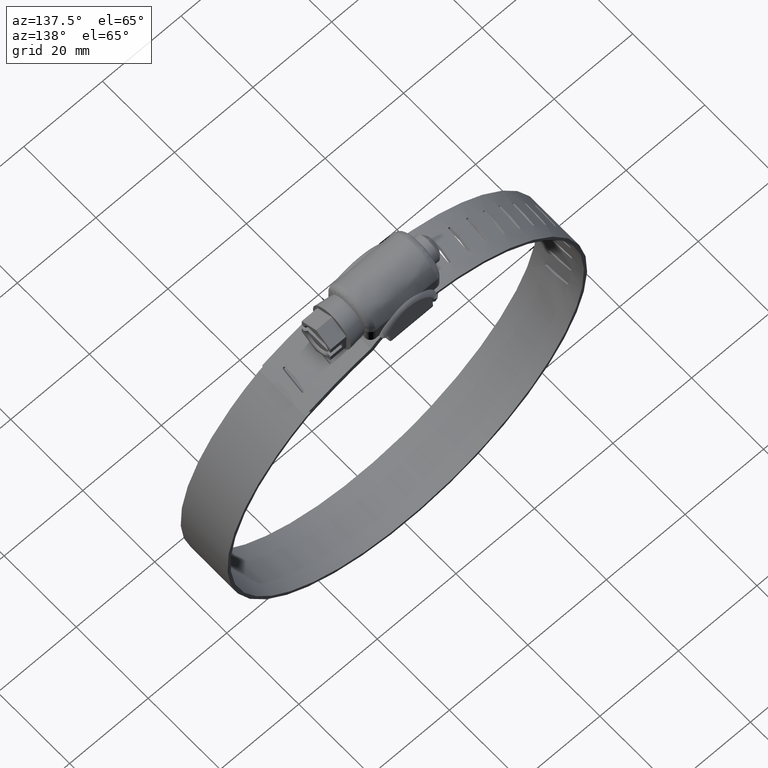
[diagram: clean part render]
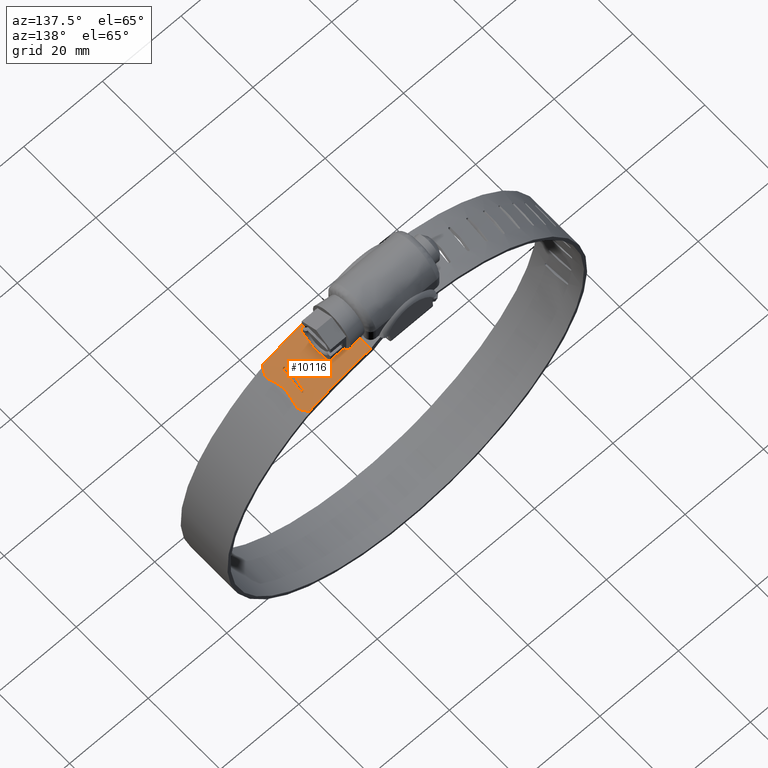
[diagram: same view with one face highlighted and labeled with its STEP entity id]
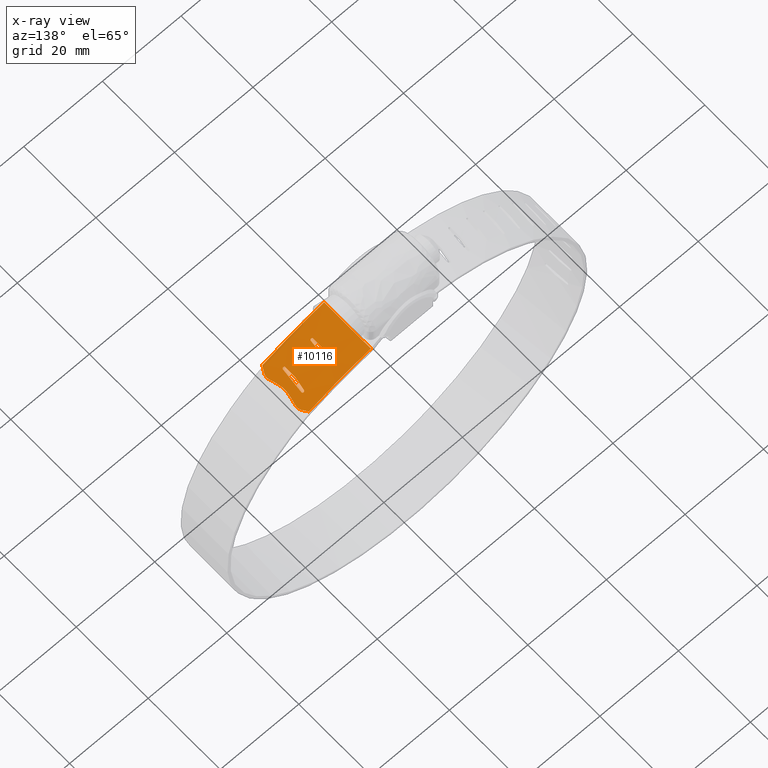
[diagram: x-ray of the same camera — body ghosted, the highlighted face saturated]
A machine part, auxiliary view. The second image highlights one B-rep face of the part: STEP entity #10116.
The next image is the same camera in x-ray: the body ghosted, the highlighted face saturated — about 0% of this face is hidden behind the body in this view.
In plain terms, the highlighted face is a freeform B-spline surface patch.
Its self-contained STEP definition (entity closure, byte-faithful):
#8594=CARTESIAN_POINT('',(9.230222700109101,2.817188247405955,10.887856189108360));
#8595=VERTEX_POINT('',#8594);
#8596=CARTESIAN_POINT('',(9.231305816878090,2.827519999999880,10.887652236006060));
#8597=VERTEX_POINT('',#8596);
#8598=CARTESIAN_POINT('',(9.230222700109101,2.817188247405955,10.887856189108360));
#8599=CARTESIAN_POINT('',(9.231305816878090,2.827519999999880,10.887652236006060));
#8600=QUASI_UNIFORM_CURVE('',1,(#8598,#8599),.UNSPECIFIED.,.F.,.U.);
#8601=EDGE_CURVE('',#8595,#8597,#8600,.T.);
#8669=CARTESIAN_POINT('',(9.230222700109051,2.853041539362735,10.887856189108319));
#8670=VERTEX_POINT('',#8669);
#8748=CARTESIAN_POINT('',(9.230222700109051,2.853041539362735,10.887856189108319));
#8749=CARTESIAN_POINT('',(9.231305816878090,2.827519999999880,10.887652236006060));
#8750=QUASI_UNIFORM_CURVE('',1,(#8748,#8749),.UNSPECIFIED.,.F.,.U.);
#8751=EDGE_CURVE('',#8670,#8597,#8750,.T.);
#8941=CARTESIAN_POINT('',(15.353237471989550,-0.313004000000117,9.430597077441080));
#8942=VERTEX_POINT('',#8941);
#8943=CARTESIAN_POINT('',(15.353237471989299,-2.872480000000000,9.430597077441089));
#8944=VERTEX_POINT('',#8943);
#8945=CARTESIAN_POINT('',(15.353237471989550,-0.313004000000117,9.430597077441080));
#8946=CARTESIAN_POINT('',(15.353237471989299,-2.872480000000000,9.430597077441089));
#8947=QUASI_UNIFORM_CURVE('',1,(#8945,#8946),.UNSPECIFIED.,.F.,.U.);
#8948=EDGE_CURVE('',#8942,#8944,#8947,.T.);
#8990=CARTESIAN_POINT('',(15.938009365771300,-2.872480000000000,9.258772975433201));
#8991=VERTEX_POINT('',#8990);
#9020=CARTESIAN_POINT('',(15.645834251182359,-3.172479978969995,9.345353863965562));
#9021=VERTEX_POINT('',#9020);
#9022=CARTESIAN_POINT('',(15.645834251182359,-3.172479978969995,9.345353863965562));
#9023=CARTESIAN_POINT('',(15.579389477736180,-3.172952565550569,9.364878365282042));
#9024=CARTESIAN_POINT('',(15.466146807141291,-3.130424667992435,9.398048778284437));
#9025=CARTESIAN_POINT('',(15.371965920817800,-3.000602486252366,9.425405888703486));
#9026=CARTESIAN_POINT('',(15.353816214212630,-2.911964166541003,9.430523102872375));
#9027=CARTESIAN_POINT('',(15.353237471989299,-2.872480000000000,9.430597077441089));
#9028=B_SPLINE_CURVE_WITH_KNOTS('',3,(#9022,#9023,#9024,#9025,#9026,#9027),.UNSPECIFIED.,.F.,.U.,(4,1,1,4),(0.000001660317372,0.207498044210473,0.355677238073957,0.474235979224484),.UNSPECIFIED.);
#9029=EDGE_CURVE('',#9021,#8944,#9028,.T.);
#9031=CARTESIAN_POINT('',(15.938009365771300,-2.872480000000000,9.258772975433201));
#9032=CARTESIAN_POINT('',(15.937483316712051,-2.911963928937157,9.259023622205366));
#9033=CARTESIAN_POINT('',(15.919449377355321,-3.000584649581780,9.264538241598652));
#9034=CARTESIAN_POINT('',(15.825455206732199,-3.130441046000716,9.292472876904252));
#9035=CARTESIAN_POINT('',(15.712270966851060,-3.172909192438410,9.325833560827217));
#9036=CARTESIAN_POINT('',(15.645834251182359,-3.172479978969995,9.345353863965562));
#9037=B_SPLINE_CURVE_WITH_KNOTS('',3,(#9031,#9032,#9033,#9034,#9035,#9036),.UNSPECIFIED.,.F.,.U.,(4,1,1,4),(0.000000835277714,0.118552907723867,0.266723769253057,0.474208479421847),.UNSPECIFIED.);
#9038=EDGE_CURVE('',#8991,#9021,#9037,.T.);
#9048=CARTESIAN_POINT('',(16.520244992011449,2.827519999999880,9.081861907719310));
#9049=VERTEX_POINT('',#9048);
#9050=CARTESIAN_POINT('',(15.938009365771300,-2.872480000000000,9.258772975433201));
#9051=CARTESIAN_POINT('',(16.520244992011449,2.827519999999880,9.081861907719310));
#9052=QUASI_UNIFORM_CURVE('',1,(#9050,#9051),.UNSPECIFIED.,.F.,.U.);
#9053=EDGE_CURVE('',#8991,#9049,#9052,.T.);
#9089=CARTESIAN_POINT('',(15.938009365771300,2.827519999999880,9.258772975433201));
#9090=VERTEX_POINT('',#9089);
#9119=CARTESIAN_POINT('',(16.229366638614891,3.127519988816475,9.170975140533852));
#9120=VERTEX_POINT('',#9119);
#9121=CARTESIAN_POINT('',(16.229366638614891,3.127519988816475,9.170975140533852));
#9122=CARTESIAN_POINT('',(16.267111851704410,3.127555073098105,9.159506411246639));
#9123=CARTESIAN_POINT('',(16.352113555354300,3.110032961584742,9.133636138557334));
#9124=CARTESIAN_POINT('',(16.477570139638949,3.014013983891643,9.095282617347076));
#9125=CARTESIAN_POINT('',(16.519720410558008,2.896682734467435,9.082189682470908));
#9126=CARTESIAN_POINT('',(16.520244992011449,2.827519999999880,9.081861907719310));
#9127=B_SPLINE_CURVE_WITH_KNOTS('',3,(#9121,#9122,#9123,#9124,#9125,#9126),.UNSPECIFIED.,.F.,.U.,(4,1,1,4),(0.000001307988805,0.118462417096805,0.266519700891922,0.473845836866454),.UNSPECIFIED.);
#9128=EDGE_CURVE('',#9120,#9049,#9127,.T.);
#9130=CARTESIAN_POINT('',(15.938009365771300,2.827519999999880,9.258772975433201));
#9131=CARTESIAN_POINT('',(15.938536156576941,2.866978920605721,9.258708976861646));
#9132=CARTESIAN_POINT('',(15.956554220190300,2.955569541558125,9.253449911757407));
#9133=CARTESIAN_POINT('',(16.050269885053758,3.085446468722952,9.225290827128241));
#9134=CARTESIAN_POINT('',(16.163182957455209,3.127900878519924,9.191085820084961));
#9135=CARTESIAN_POINT('',(16.229366638614891,3.127519988816475,9.170975140533852));
#9136=B_SPLINE_CURVE_WITH_KNOTS('',3,(#9130,#9131,#9132,#9133,#9134,#9135),.UNSPECIFIED.,.F.,.U.,(4,1,1,4),(0.000001190845610,0.118481353129834,0.266562411151377,0.473921747517501),.UNSPECIFIED.);
#9137=EDGE_CURVE('',#9090,#9120,#9136,.T.);
#9147=CARTESIAN_POINT('',(15.391303475518200,0.030281000000002,9.419589794821270));
#9148=VERTEX_POINT('',#9147);
#9149=CARTESIAN_POINT('',(15.938009365771300,2.827519999999880,9.258772975433201));
#9150=CARTESIAN_POINT('',(15.391303475518200,0.030281000000002,9.419589794821270));
#9151=QUASI_UNIFORM_CURVE('',1,(#9149,#9150),.UNSPECIFIED.,.F.,.U.);
#9152=EDGE_CURVE('',#9090,#9148,#9151,.T.);
#9175=CARTESIAN_POINT('',(15.391303475518200,0.030281000000002,9.419589794821270));
#9176=CARTESIAN_POINT('',(15.353237471989550,-0.313004000000117,9.430597077441080));
#9177=QUASI_UNIFORM_CURVE('',1,(#9175,#9176),.UNSPECIFIED.,.F.,.U.);
#9178=EDGE_CURVE('',#9148,#8942,#9177,.T.);
#9204=CARTESIAN_POINT('',(25.515306484840799,-2.061301204482780,5.566556950268270));
#9205=VERTEX_POINT('',#9204);
#9206=CARTESIAN_POINT('',(25.515306484840750,2.061301204482445,5.566556950268270));
#9207=VERTEX_POINT('',#9206);
#9208=CARTESIAN_POINT('',(25.515306484840799,-2.061301204482780,5.566556950268270));
#9209=CARTESIAN_POINT('',(25.382379051593649,-1.516027701265343,5.629716827649327));
#9210=CARTESIAN_POINT('',(25.185661247749650,-0.134851896540806,5.723186415272900));
#9211=CARTESIAN_POINT('',(25.320700994751519,1.264400387586254,5.659022881426841));
#9212=CARTESIAN_POINT('',(25.515306484840750,2.061301204482445,5.566556950268270));
#9213=B_SPLINE_CURVE_WITH_KNOTS('',3,(#9208,#9209,#9210,#9211,#9212),.UNSPECIFIED.,.F.,.U.,(4,1,4),(0.000000019080829,1.694378406885622,4.170743740979951),.UNSPECIFIED.);
#9214=EDGE_CURVE('',#9205,#9207,#9213,.T.);
#9255=CARTESIAN_POINT('',(25.908712002142451,3.681800700682950,5.377089482418460));
#9256=VERTEX_POINT('',#9255);
#9257=CARTESIAN_POINT('',(25.710922002135799,5.226117512658560,5.472746253276511));
#9258=VERTEX_POINT('',#9257);
#9259=CARTESIAN_POINT('',(25.908712002142451,3.681800700682950,5.377089482418460));
#9260=CARTESIAN_POINT('',(25.983526658967989,3.988161539756614,5.340879667935229));
#9261=CARTESIAN_POINT('',(25.993825593928442,4.537776175503347,5.335879461026392));
#9262=CARTESIAN_POINT('',(25.812402234099640,5.040588270994931,5.423648936347411));
#9263=CARTESIAN_POINT('',(25.710922002135799,5.226117512658560,5.472746253276511));
#9264=B_SPLINE_CURVE_WITH_KNOTS('',3,(#9259,#9260,#9261,#9262,#9263),.UNSPECIFIED.,.F.,.U.,(4,1,4),(0.000000100567203,0.951910027821617,1.603225380619430),.UNSPECIFIED.);
#9265=EDGE_CURVE('',#9256,#9258,#9264,.T.);
#9306=CARTESIAN_POINT('',(25.710922002135948,-5.226117512658971,5.472746253276450));
#9307=VERTEX_POINT('',#9306);
#9308=CARTESIAN_POINT('',(25.908712002142451,-3.681800700683280,5.377089482418450));
#9309=VERTEX_POINT('',#9308);
#9310=CARTESIAN_POINT('',(25.710922002135948,-5.226117512658971,5.472746253276450));
#9311=CARTESIAN_POINT('',(25.859687491844301,-4.955105779940631,5.400684016104755));
#9312=CARTESIAN_POINT('',(26.007543372530840,-4.430487277231399,5.329095384550370));
#9313=CARTESIAN_POINT('',(25.959595771626262,-3.891402711803436,5.352402236202392));
#9314=CARTESIAN_POINT('',(25.908712002142451,-3.681800700683280,5.377089482418450));
#9315=B_SPLINE_CURVE_WITH_KNOTS('',3,(#9310,#9311,#9312,#9313,#9314),.UNSPECIFIED.,.F.,.U.,(4,1,4),(0.000000100678212,0.951924416187501,1.603249618908127),.UNSPECIFIED.);
#9316=EDGE_CURVE('',#9307,#9309,#9315,.T.);
#9356=CARTESIAN_POINT('',(25.012535699162001,-6.500000000000000,5.804070216835290));
#9357=VERTEX_POINT('',#9356);
#9358=CARTESIAN_POINT('',(25.012535699162001,-6.500000000000000,5.804070216835290));
#9359=CARTESIAN_POINT('',(25.710922002135948,-5.226117512658971,5.472746253276450));
#9360=QUASI_UNIFORM_CURVE('',1,(#9358,#9359),.UNSPECIFIED.,.F.,.U.);
#9361=EDGE_CURVE('',#9357,#9307,#9360,.T.);
#9376=CARTESIAN_POINT('',(25.012535699162200,6.499999999999840,5.804070216835160));
#9377=VERTEX_POINT('',#9376);
#9378=CARTESIAN_POINT('',(25.710922002135799,5.226117512658560,5.472746253276511));
#9379=CARTESIAN_POINT('',(25.012535699162200,6.499999999999840,5.804070216835160));
#9380=QUASI_UNIFORM_CURVE('',1,(#9378,#9379),.UNSPECIFIED.,.F.,.U.);
#9381=EDGE_CURVE('',#9258,#9377,#9380,.T.);
#9410=CARTESIAN_POINT('',(25.908712002142451,-3.681800700683280,5.377089482418450));
#9411=CARTESIAN_POINT('',(25.515306484840799,-2.061301204482780,5.566556950268270));
#9412=QUASI_UNIFORM_CURVE('',1,(#9410,#9411),.UNSPECIFIED.,.F.,.U.);
#9413=EDGE_CURVE('',#9309,#9205,#9412,.T.);
#9424=CARTESIAN_POINT('',(25.515306484840750,2.061301204482445,5.566556950268270));
#9425=CARTESIAN_POINT('',(25.908712002142451,3.681800700682950,5.377089482418460));
#9426=QUASI_UNIFORM_CURVE('',1,(#9424,#9425),.UNSPECIFIED.,.F.,.U.);
#9427=EDGE_CURVE('',#9207,#9256,#9426,.T.);
#9444=CARTESIAN_POINT('',(22.437880660319198,-0.313004000000117,6.941150572174880));
#9445=VERTEX_POINT('',#9444);
#9446=CARTESIAN_POINT('',(22.437880660319049,-2.872480000000000,6.941150572174931));
#9447=VERTEX_POINT('',#9446);
#9448=CARTESIAN_POINT('',(22.437880660319198,-0.313004000000117,6.941150572174880));
#9449=CARTESIAN_POINT('',(22.437880660319049,-2.872480000000000,6.941150572174931));
#9450=QUASI_UNIFORM_CURVE('',1,(#9448,#9449),.UNSPECIFIED.,.F.,.U.);
#9451=EDGE_CURVE('',#9445,#9447,#9450,.T.);
#9493=CARTESIAN_POINT('',(22.999442515421400,-2.872480000000000,6.704232922595580));
#9494=VERTEX_POINT('',#9493);
#9523=CARTESIAN_POINT('',(22.718946779470048,-3.172479978969994,6.823332418635170));
#9524=VERTEX_POINT('',#9523);
#9525=CARTESIAN_POINT('',(22.718946779470048,-3.172479978969994,6.823332418635170));
#9526=CARTESIAN_POINT('',(22.655170358582829,-3.172884029421454,6.850239923494841));
#9527=CARTESIAN_POINT('',(22.546344249113400,-3.130475848574109,6.896044853291687));
#9528=CARTESIAN_POINT('',(22.455915328281669,-3.000590945446306,6.933866584004436));
#9529=CARTESIAN_POINT('',(22.438444725033371,-2.911964115052918,6.941012647298074));
#9530=CARTESIAN_POINT('',(22.437880660319049,-2.872480000000000,6.941150572174931));
#9531=B_SPLINE_CURVE_WITH_KNOTS('',3,(#9525,#9526,#9527,#9528,#9529,#9530),.UNSPECIFIED.,.F.,.U.,(4,1,1,4),(0.000001660317415,0.207498044210709,0.355677238074322,0.474235979224972),.UNSPECIFIED.);
#9532=EDGE_CURVE('',#9524,#9447,#9531,.T.);
#9534=CARTESIAN_POINT('',(22.999442515421400,-2.872480000000000,6.704232922595580));
#9535=CARTESIAN_POINT('',(22.998947812733270,-2.911962310362362,6.704541677142443));
#9536=CARTESIAN_POINT('',(22.981656565170979,-3.000593611944376,6.712061322101431));
#9537=CARTESIAN_POINT('',(22.891421633314721,-3.130416237424343,6.750459809029791));
#9538=CARTESIAN_POINT('',(22.782753256048832,-3.172944319390328,6.796414055193860));
#9539=CARTESIAN_POINT('',(22.718946779470048,-3.172479978969994,6.823332418635170));
#9540=B_SPLINE_CURVE_WITH_KNOTS('',3,(#9534,#9535,#9536,#9537,#9538,#9539),.UNSPECIFIED.,.F.,.U.,(4,1,1,4),(0.000000835277821,0.118552907723793,0.266723769252756,0.474208479421236),.UNSPECIFIED.);
#9541=EDGE_CURVE('',#9494,#9524,#9540,.T.);
#9551=CARTESIAN_POINT('',(23.557908545609600,2.827519999999880,6.462548120696910));
#9552=VERTEX_POINT('',#9551);
#9553=CARTESIAN_POINT('',(22.999442515421400,-2.872480000000000,6.704232922595580));
#9554=CARTESIAN_POINT('',(23.557908545609600,2.827519999999880,6.462548120696910));
#9555=QUASI_UNIFORM_CURVE('',1,(#9553,#9554),.UNSPECIFIED.,.F.,.U.);
#9556=EDGE_CURVE('',#9494,#9552,#9555,.T.);
#9592=CARTESIAN_POINT('',(22.999442515421400,2.827519999999880,6.704232922595580));
#9593=VERTEX_POINT('',#9592);
#9622=CARTESIAN_POINT('',(23.278987904592778,3.127519988816474,6.584016885209937));
#9623=VERTEX_POINT('',#9622);
#9624=CARTESIAN_POINT('',(23.278987904592778,3.127519988816474,6.584016885209937));
#9625=CARTESIAN_POINT('',(23.342460100061938,3.127883408781170,6.556549213915860));
#9626=CARTESIAN_POINT('',(23.450669882369240,3.085413877645749,6.509611928000692));
#9627=CARTESIAN_POINT('',(23.540327870693389,2.955549086421459,6.470481397543268));
#9628=CARTESIAN_POINT('',(23.557465454184189,2.866972610548197,6.462840013824160));
#9629=CARTESIAN_POINT('',(23.557908545609600,2.827519999999880,6.462548120696910));
#9630=B_SPLINE_CURVE_WITH_KNOTS('',3,(#9624,#9625,#9626,#9627,#9628,#9629),.UNSPECIFIED.,.F.,.U.,(4,1,1,4),(0.000001307988581,0.207327372299138,0.355384681536477,0.473845836866784),.UNSPECIFIED.);
#9631=EDGE_CURVE('',#9623,#9552,#9630,.T.);
#9633=CARTESIAN_POINT('',(22.999442515421400,2.827519999999880,6.704232922595580));
#9634=CARTESIAN_POINT('',(22.999958675095769,2.866978920605694,6.704109701003903));
#9635=CARTESIAN_POINT('',(23.017265572924529,2.955569541558038,6.696844739222292));
#9636=CARTESIAN_POINT('',(23.107191121092040,3.085446468722807,6.658257750810274));
#9637=CARTESIAN_POINT('',(23.215506255243689,3.127900878519840,6.611490495816679));
#9638=CARTESIAN_POINT('',(23.278987904592778,3.127519988816474,6.584016885209937));
#9639=B_SPLINE_CURVE_WITH_KNOTS('',3,(#9633,#9634,#9635,#9636,#9637,#9638),.UNSPECIFIED.,.F.,.U.,(4,1,1,4),(0.000001190845591,0.118481353129733,0.266562411151180,0.473921747517180),.UNSPECIFIED.);
#9640=EDGE_CURVE('',#9593,#9623,#9639,.T.);
#9650=CARTESIAN_POINT('',(22.474455910316149,0.030281000000002,6.925904852022050));
#9651=VERTEX_POINT('',#9650);
#9652=CARTESIAN_POINT('',(22.999442515421400,2.827519999999880,6.704232922595580));
#9653=CARTESIAN_POINT('',(22.474455910316149,0.030281000000002,6.925904852022050));
#9654=QUASI_UNIFORM_CURVE('',1,(#9652,#9653),.UNSPECIFIED.,.F.,.U.);
#9655=EDGE_CURVE('',#9593,#9651,#9654,.T.);
#9678=CARTESIAN_POINT('',(22.474455910316149,0.030281000000002,6.925904852022050));
#9679=CARTESIAN_POINT('',(22.437880660319198,-0.313004000000117,6.941150572174880));
#9680=QUASI_UNIFORM_CURVE('',1,(#9678,#9679),.UNSPECIFIED.,.F.,.U.);
#9681=EDGE_CURVE('',#9651,#9445,#9680,.T.);
#9818=CARTESIAN_POINT('',(9.230222700109101,-6.500000000000000,10.887856189108360));
#9819=VERTEX_POINT('',#9818);
#9820=CARTESIAN_POINT('',(25.012535699162001,-6.500000000000000,5.804070216835290));
#9821=CARTESIAN_POINT('',(22.894555131026909,-6.499999999999998,6.793803051482898));
#9822=CARTESIAN_POINT('',(17.749780653597931,-6.500000000000004,8.873664433406683));
#9823=CARTESIAN_POINT('',(12.378620803118761,-6.500000000000002,10.295204885329680));
#9824=CARTESIAN_POINT('',(9.230222700109101,-6.500000000000000,10.887856189108360));
#9825=B_SPLINE_CURVE_WITH_KNOTS('',3,(#9820,#9821,#9822,#9823,#9824),.UNSPECIFIED.,.F.,.U.,(4,1,4),(1.771724E-009,7.013472146817978,16.624524301948409),.UNSPECIFIED.);
#9826=EDGE_CURVE('',#9357,#9819,#9825,.T.);
#9862=CARTESIAN_POINT('',(9.230222700109101,6.499999999999840,10.887856189108360));
#9863=VERTEX_POINT('',#9862);
#9873=CARTESIAN_POINT('',(25.012535699162200,6.499999999999840,5.804070216835160));
#9874=CARTESIAN_POINT('',(22.894555494265799,6.499999999999838,6.793803615890494));
#9875=CARTESIAN_POINT('',(17.749780243148010,6.499999999999832,8.873663729145678));
#9876=CARTESIAN_POINT('',(12.378620989691820,6.499999999999863,10.295205273932369));
#9877=CARTESIAN_POINT('',(9.230222700109101,6.499999999999840,10.887856189108360));
#9878=B_SPLINE_CURVE_WITH_KNOTS('',3,(#9873,#9874,#9875,#9876,#9877),.UNSPECIFIED.,.F.,.U.,(4,1,4),(1.770495E-009,7.013472146817609,16.624524301948640),.UNSPECIFIED.);
#9879=EDGE_CURVE('',#9377,#9863,#9878,.T.);
#10046=CARTESIAN_POINT('',(9.230222700109101,6.499999999999840,10.887856189108360));
#10047=CARTESIAN_POINT('',(9.230222700109051,2.853041539362735,10.887856189108319));
#10048=QUASI_UNIFORM_CURVE('',1,(#10046,#10047),.UNSPECIFIED.,.F.,.U.);
#10049=EDGE_CURVE('',#9863,#8670,#10048,.T.);
#10054=CARTESIAN_POINT('',(9.230222700109101,2.817188247405955,10.887856189108360));
#10055=CARTESIAN_POINT('',(9.230222700109101,-6.500000000000000,10.887856189108360));
#10056=QUASI_UNIFORM_CURVE('',1,(#10054,#10055),.UNSPECIFIED.,.F.,.U.);
#10057=EDGE_CURVE('',#8595,#9819,#10056,.T.);
#10067=CARTESIAN_POINT('',(26.757831682101646,-6.824999999999995,4.957160792961615));
#10068=CARTESIAN_POINT('',(26.757831682101646,6.833124999999837,4.957160792961615));
#10069=CARTESIAN_POINT('',(18.010447978239821,-6.824999999999996,9.361281034664398));
#10070=CARTESIAN_POINT('',(18.010447978239821,6.833124999999837,9.361281034664398));
#10071=CARTESIAN_POINT('',(8.362787442035433,-6.824999999999997,11.045217774606824));
#10072=CARTESIAN_POINT('',(8.362787442035433,6.833124999999837,11.045217774606824));
#10080=(BOUNDED_SURFACE()B_SPLINE_SURFACE(1,2,((#10067,#10069,#10071),(#10068,#10070,#10072)),.UNSPECIFIED.,.F.,.F.,.U.)B_SPLINE_SURFACE_WITH_KNOTS((2,2),(3,3),(0.0,13.658124999999830),(0.0,19.481101757422930),.UNSPECIFIED.)GEOMETRIC_REPRESENTATION_ITEM()RATIONAL_B_SPLINE_SURFACE(((0.997742833249378,0.985555038825192,0.994804270716020),(0.997742833249378,0.985555038825192,0.994804270716020)))REPRESENTATION_ITEM('')SURFACE());
#10081=ORIENTED_EDGE('',*,*,#10049,.T.);
#10082=ORIENTED_EDGE('',*,*,#8751,.T.);
#10083=ORIENTED_EDGE('',*,*,#8601,.F.);
#10084=ORIENTED_EDGE('',*,*,#10057,.T.);
#10085=ORIENTED_EDGE('',*,*,#9826,.F.);
#10086=ORIENTED_EDGE('',*,*,#9361,.T.);
#10087=ORIENTED_EDGE('',*,*,#9316,.T.);
#10088=ORIENTED_EDGE('',*,*,#9413,.T.);
#10089=ORIENTED_EDGE('',*,*,#9214,.T.);
#10090=ORIENTED_EDGE('',*,*,#9427,.T.);
#10091=ORIENTED_EDGE('',*,*,#9265,.T.);
#10092=ORIENTED_EDGE('',*,*,#9381,.T.);
#10093=ORIENTED_EDGE('',*,*,#9879,.T.);
#10094=EDGE_LOOP('',(#10081,#10082,#10083,#10084,#10085,#10086,#10087,#10088,#10089,#10090,#10091,#10092,#10093));
#10095=FACE_OUTER_BOUND('',#10094,.T.);
#10096=ORIENTED_EDGE('',*,*,#9178,.F.);
#10097=ORIENTED_EDGE('',*,*,#9152,.F.);
#10098=ORIENTED_EDGE('',*,*,#9137,.T.);
#10099=ORIENTED_EDGE('',*,*,#9128,.T.);
#10100=ORIENTED_EDGE('',*,*,#9053,.F.);
#10101=ORIENTED_EDGE('',*,*,#9038,.T.);
#10102=ORIENTED_EDGE('',*,*,#9029,.T.);
#10103=ORIENTED_EDGE('',*,*,#8948,.F.);
#10104=EDGE_LOOP('',(#10096,#10097,#10098,#10099,#10100,#10101,#10102,#10103));
#10105=FACE_BOUND('',#10104,.T.);
#10106=ORIENTED_EDGE('',*,*,#9681,.F.);
#10107=ORIENTED_EDGE('',*,*,#9655,.F.);
#10108=ORIENTED_EDGE('',*,*,#9640,.T.);
#10109=ORIENTED_EDGE('',*,*,#9631,.T.);
#10110=ORIENTED_EDGE('',*,*,#9556,.F.);
#10111=ORIENTED_EDGE('',*,*,#9541,.T.);
#10112=ORIENTED_EDGE('',*,*,#9532,.T.);
#10113=ORIENTED_EDGE('',*,*,#9451,.F.);
#10114=EDGE_LOOP('',(#10106,#10107,#10108,#10109,#10110,#10111,#10112,#10113));
#10115=FACE_BOUND('',#10114,.T.);
#10116=ADVANCED_FACE('',(#10095,#10105,#10115),#10080,.T.);